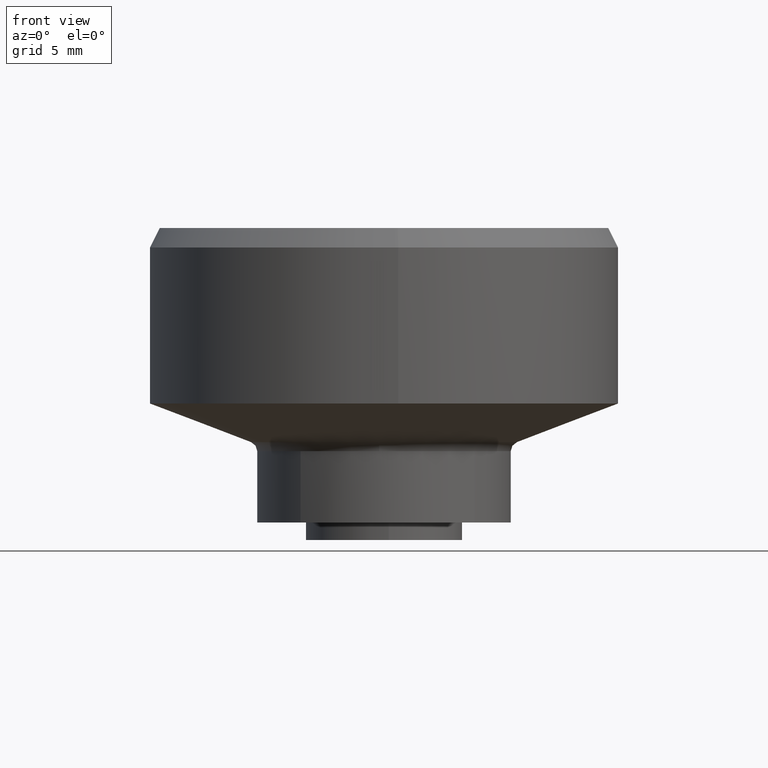
[diagram: clean part render]
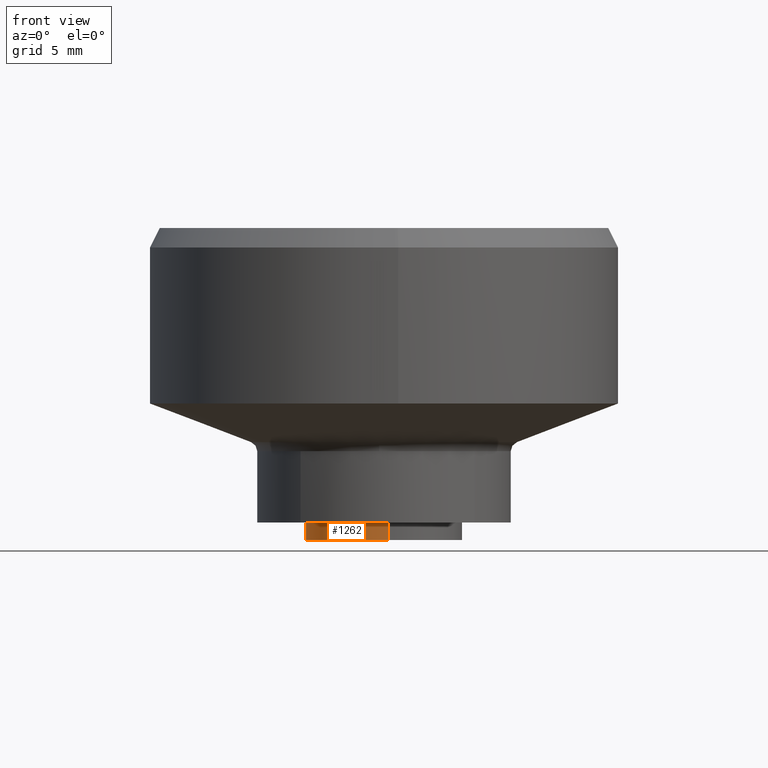
[diagram: same view with one face highlighted and labeled with its STEP entity id]
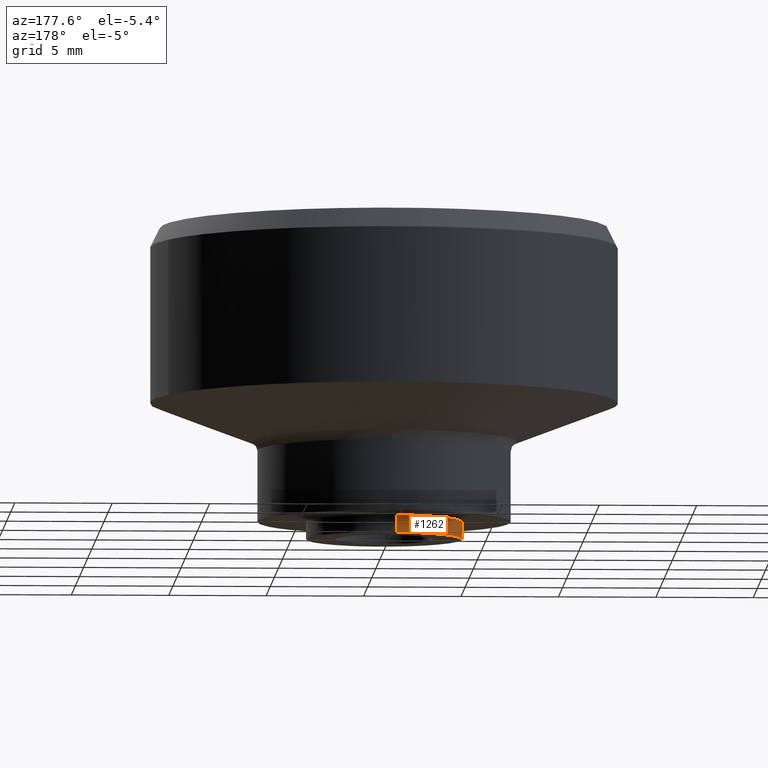
[diagram: same view with one face highlighted and labeled with its STEP entity id]
A machine part, front view. The second image highlights one B-rep face of the part: STEP entity #1262.
A second angle (auxiliary view) of the same face is appended — the face is thin or edge-on in the first view.
In plain terms, the highlighted face is a freeform B-spline surface patch.
Its self-contained STEP definition (entity closure, byte-faithful):
#1099=CARTESIAN_POINT('',(-0.472136938647993,3.972038105452174,0.899993000000109));
#1100=VERTEX_POINT('',#1099);
#1118=CARTESIAN_POINT('',(0.244191350726009,-3.992539365394246,0.899993000000207));
#1119=VERTEX_POINT('',#1118);
#1133=CARTESIAN_POINT('',(0.244191384606726,-3.992539363322061,1.040834E-017));
#1134=VERTEX_POINT('',#1133);
#1135=CARTESIAN_POINT('',(0.244191350726009,-3.992539365394246,0.899993000000207));
#1136=CARTESIAN_POINT('',(0.244191384606726,-3.992539363322061,1.040834E-017));
#1137=QUASI_UNIFORM_CURVE('',1,(#1135,#1136),.UNSPECIFIED.,.F.,.U.);
#1138=EDGE_CURVE('',#1119,#1134,#1137,.T.);
#1155=CARTESIAN_POINT('',(-0.472136938647993,3.972038105452174,8.873213E-018));
#1156=VERTEX_POINT('',#1155);
#1172=CARTESIAN_POINT('',(-0.472136938647993,3.972038105452174,0.899993000000109));
#1173=CARTESIAN_POINT('',(-0.472136938647993,3.972038105452174,8.873213E-018));
#1174=QUASI_UNIFORM_CURVE('',1,(#1172,#1173),.UNSPECIFIED.,.F.,.U.);
#1175=EDGE_CURVE('',#1100,#1156,#1174,.T.);
#1180=CARTESIAN_POINT('',(0.244194158139428,-3.992539193687467,0.922492825000112));
#1181=CARTESIAN_POINT('',(-3.748345035548039,-4.236733351826894,0.922492825000112));
#1182=CARTESIAN_POINT('',(-3.992539193687467,-0.244194158139428,0.922492825000112));
#1183=CARTESIAN_POINT('',(-4.223144786930110,3.526173963358004,0.922492825000112));
#1184=CARTESIAN_POINT('',(-0.472136938627034,3.972038105454666,0.922492825000112));
#1185=CARTESIAN_POINT('',(0.244194158139428,-3.992539193687467,-0.023062320625003));
#1186=CARTESIAN_POINT('',(-3.748345035548039,-4.236733351826894,-0.023062320625003));
#1187=CARTESIAN_POINT('',(-3.992539193687467,-0.244194158139428,-0.023062320625003));
#1188=CARTESIAN_POINT('',(-4.223144786930110,3.526173963358004,-0.023062320625003));
#1189=CARTESIAN_POINT('',(-0.472136938627034,3.972038105454666,-0.023062320625003));
#1197=(BOUNDED_SURFACE()B_SPLINE_SURFACE(2,1,((#1180,#1185),(#1181,#1186),(#1182,#1187),(#1183,#1188),(#1184,#1189)),.UNSPECIFIED.,.F.,.F.,.U.)B_SPLINE_SURFACE_WITH_KNOTS((3,2,3),(2,2),(0.0,6.627416997969518,12.989737316020260),(0.0,1.0),.UNSPECIFIED.)GEOMETRIC_REPRESENTATION_ITEM()RATIONAL_B_SPLINE_SURFACE(((1.0,1.0),(0.707106781186548,0.707106781186548),(1.0,1.0),(0.718822509939086,0.718822509939086),(0.977505800795127,0.977505800795127)))REPRESENTATION_ITEM('')SURFACE());
#1198=CARTESIAN_POINT('',(-4.0,0.0,0.899993000000109));
#1199=VERTEX_POINT('',#1198);
#1200=CARTESIAN_POINT('',(-4.0,0.0,0.899993000000109));
#1201=CARTESIAN_POINT('',(-4.0,3.552698103767714,0.899993000000109));
#1202=CARTESIAN_POINT('',(-0.472136938647993,3.972038105452174,0.899993000000109));
#1210=(BOUNDED_CURVE()B_SPLINE_CURVE(2,(#1200,#1201,#1202),.UNSPECIFIED.,.F.,.U.)B_SPLINE_CURVE_WITH_KNOTS((3,3),(0.0,0.229562473513861),.UNSPECIFIED.)CURVE()GEOMETRIC_REPRESENTATION_ITEM()RATIONAL_B_SPLINE_CURVE((1.0,0.731050832854990,0.956026754184390))REPRESENTATION_ITEM(''));
#1211=EDGE_CURVE('',#1199,#1100,#1210,.T.);
#1212=ORIENTED_EDGE('',*,*,#1211,.T.);
#1213=ORIENTED_EDGE('',*,*,#1175,.T.);
#1214=CARTESIAN_POINT('',(-4.0,0.0,0.0));
#1215=VERTEX_POINT('',#1214);
#1216=CARTESIAN_POINT('',(-4.0,0.0,0.0));
#1217=CARTESIAN_POINT('',(-4.0,3.552698103767714,0.0));
#1218=CARTESIAN_POINT('',(-0.472136938647993,3.972038105452174,8.873213E-018));
#1226=(BOUNDED_CURVE()B_SPLINE_CURVE(2,(#1216,#1217,#1218),.UNSPECIFIED.,.F.,.U.)B_SPLINE_CURVE_WITH_KNOTS((3,3),(0.0,0.229562473513861),.UNSPECIFIED.)CURVE()GEOMETRIC_REPRESENTATION_ITEM()RATIONAL_B_SPLINE_CURVE((1.0,0.731050832854990,0.956026754184390))REPRESENTATION_ITEM(''));
#1227=EDGE_CURVE('',#1215,#1156,#1226,.T.);
#1228=ORIENTED_EDGE('',*,*,#1227,.F.);
#1229=CARTESIAN_POINT('',(0.244191384606726,-3.992539363322061,1.040834E-017));
#1230=CARTESIAN_POINT('',(0.122209662539720,-4.000000000000001,0.0));
#1231=CARTESIAN_POINT('',(0.0,-4.0,0.0));
#1232=CARTESIAN_POINT('',(-4.000000000000000,-4.000000000000000,0.0));
#1233=CARTESIAN_POINT('',(-4.0,0.0,0.0));
#1241=(BOUNDED_CURVE()B_SPLINE_CURVE(2,(#1229,#1230,#1231,#1232,#1233),.UNSPECIFIED.,.F.,.U.)B_SPLINE_CURVE_WITH_KNOTS((3,2,3),(0.739333082106592,0.750000000000000,1.0),.UNSPECIFIED.)CURVE()GEOMETRIC_REPRESENTATION_ITEM()RATIONAL_B_SPLINE_CURVE((0.976072298566042,0.987502928333523,1.0,0.707106781186548,1.0))REPRESENTATION_ITEM(''));
#1242=EDGE_CURVE('',#1134,#1215,#1241,.T.);
#1243=ORIENTED_EDGE('',*,*,#1242,.F.);
#1244=ORIENTED_EDGE('',*,*,#1138,.F.);
#1245=CARTESIAN_POINT('',(0.244191350726009,-3.992539365394246,0.899993000000207));
#1246=CARTESIAN_POINT('',(0.122209645551865,-4.0,0.899993000000109));
#1247=CARTESIAN_POINT('',(0.0,-4.0,0.899993000000109));
#1248=CARTESIAN_POINT('',(-4.000000000000000,-4.000000000000000,0.899993000000109));
#1249=CARTESIAN_POINT('',(-4.0,0.0,0.899993000000109));
#1257=(BOUNDED_CURVE()B_SPLINE_CURVE(2,(#1245,#1246,#1247,#1248,#1249),.UNSPECIFIED.,.F.,.U.)B_SPLINE_CURVE_WITH_KNOTS((3,2,3),(0.739333083570825,0.750000000000000,1.0),.UNSPECIFIED.)CURVE()GEOMETRIC_REPRESENTATION_ITEM()RATIONAL_B_SPLINE_CURVE((0.976072301704176,0.987502930048980,1.0,0.707106781186548,1.0))REPRESENTATION_ITEM(''));
#1258=EDGE_CURVE('',#1119,#1199,#1257,.T.);
#1259=ORIENTED_EDGE('',*,*,#1258,.T.);
#1260=EDGE_LOOP('',(#1212,#1213,#1228,#1243,#1244,#1259));
#1261=FACE_OUTER_BOUND('',#1260,.T.);
#1262=ADVANCED_FACE('',(#1261),#1197,.T.);